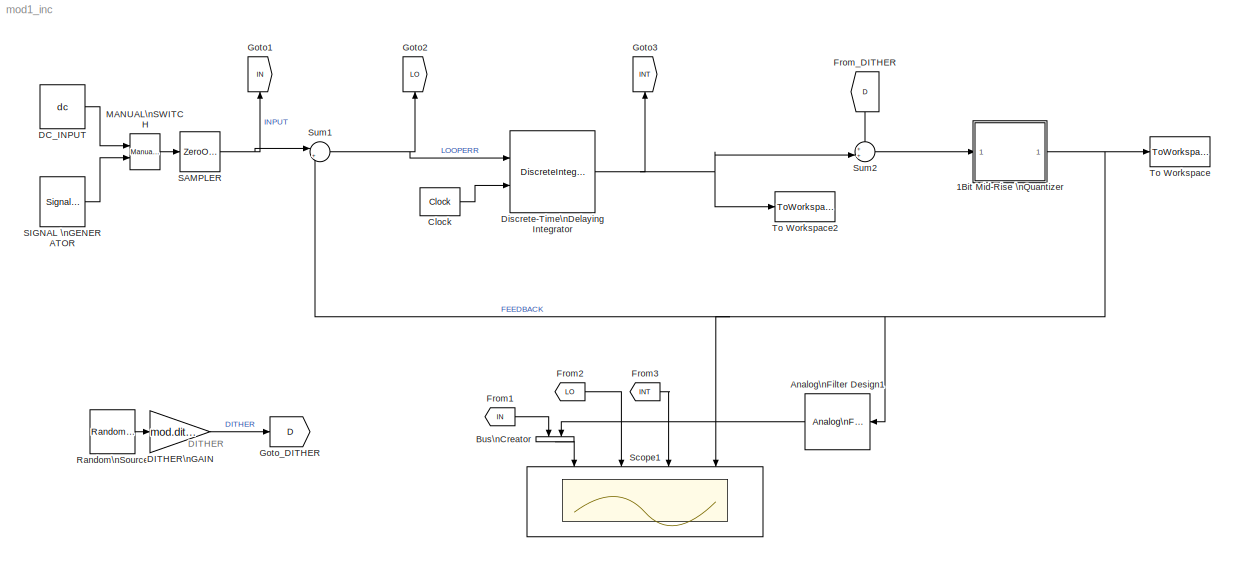
MODEL mod1_inc
KIND model
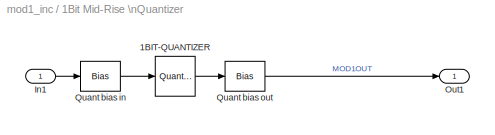
BLOCK [SubSystem] 1Bit Mid-Rise \nQuantizer
  FunctionWithSeparateData = off
  MaskHideContents = off
  MinAlgLoopOccurrences = off
  Opaque = off
  Ports = [1, 1]
  PropExecContextOutsideSubsystem = off
  RTWSystemCode = Auto
  RequestExecContextInheritance = off
  SID = 105
BLOCK [Quantizer] 1Bit Mid-Rise \nQuantizer/1BIT-QUANTIZER
  AttributesFormatString = step = 2
  QuantizationInterval = 2
  SID = 107
  SampleTime = 1/Fs
BLOCK [Inport] 1Bit Mid-Rise \nQuantizer/In1
  IconDisplay = Port number
  SID = 106
BLOCK [Outport] 1Bit Mid-Rise \nQuantizer/Out1
  IconDisplay = Port number
  SID = 111
BLOCK [Bias] 1Bit Mid-Rise \nQuantizer/Quant bias in
  AttributesFormatString = Need offset to give\\nMID-RISE quantiser
  Bias = 1
  SID = 109
  SaturateOnIntegerOverflow = off
BLOCK [Bias] 1Bit Mid-Rise \nQuantizer/Quant bias out
  AttributesFormatString = Shift outputs to\\n..., -2, 1, 1, ...
  Bias = -1
  SID = 110
  SaturateOnIntegerOverflow = off
BLOCK [Reference] Analog\nFilter Design1  REF=dsparch4/Analog\nFilter Design
  N = 8
  Ports = [1, 1]
  Rp = 2
  Rs = 40
  SID = 112
  SourceBlock = dsparch4/Analog\nFilter Design
  SourceType = Analog Filter Design
  Whi = 80
  Wlo = pi*(Fs/OSR)
  filttype = Lowpass
  method = Butterworth
BLOCK [BusCreator] Bus\nCreator
  DisplayOption = bar
  Inputs = 2
  Ports = [2, 1]
  SID = 113
BLOCK [Reference] Clock  REF=simulink_extras/Flip Flops/Clock
  Ports = [0, 1]
  SID = 103
  SourceBlock = simulink_extras/Flip Flops/Clock
  SourceType = Digital clock
  period = 1/(Fs/OSR)
BLOCK [Constant] DC_INPUT
  OutDataTypeStr = double
  SID = 56
  SampleTime = 1/(Fs/OSR)
  Value = dc
BLOCK [Gain] DITHER\nGAIN
  Gain = mod.dither
  OutDataTypeStr = Inherit: Inherit via internal rule
  ParamDataTypeStr = Inherit: Inherit via internal rule
  SID = 29
  SampleTime = 1/Fs
  SaturateOnIntegerOverflow = off
BLOCK [DiscreteIntegrator] Discrete-Time\nDelaying Integrator
  ExternalReset = either
  ICPrevOutput = DiscIntNeverNeededParam
  ICPrevScaledInput = DiscIntNeverNeededParam
  IntegratorMethod = Accumulation: Forward Euler
  LimitOutput = on
  Ports = [2, 1]
  SID = 101
  SampleTime = 1/Fs
BLOCK [From] From1
  GotoTag = IN
  SID = 114
BLOCK [From] From2
  GotoTag = LO
  SID = 115
BLOCK [From] From3
  GotoTag = INT
  SID = 116
BLOCK [From] From_DITHER
  GotoTag = D
  SID = 53
BLOCK [Goto] Goto1
  GotoTag = IN
  SID = 120
BLOCK [Goto] Goto2
  GotoTag = LO
  SID = 121
BLOCK [Goto] Goto3
  GotoTag = INT
  SID = 122
BLOCK [Goto] Goto_DITHER
  GotoTag = D
  SID = 52
BLOCK [Reference] MANUAL\nSWITCH  REF=simulink/Signal\nRouting/Manual Switch
  AttributesFormatString = Double click to\\nselect the desired\\ninput
  Ports = [2, 1]
  SID = 74
  SourceBlock = simulink/Signal\nRouting/Manual Switch
  SourceType = Manual Switch
  action = 0
  sw = 0
  varsize = off
BLOCK [Reference] Random\nSource  REF=dspsrcs4/Random\nSource
  CltLength = 12
  DataType = Double
  IsInherit = off
  MaxVal = 1
  MeanVal = 0
  MinVal = -1
  NormMethod = Ziggurat
  OutComplex = Real
  Ports = [0, 1]
  RepMode = Not repeatable
  SID = 25
  SampFrame = 1
  SampMode = Discrete
  SampTime = 1/Fs
  SourceBlock = dspsrcs4/Random\nSource
  SourceType = Random Source
  SrcType = Uniform
  UserData = DataTag0
  UserDataPersistent = on
  VarVal = 1
  rawSeed = 1
BLOCK [ZeroOrderHold] SAMPLER
  SID = 87
  SampleTime = 1/(Fs/OSR)
BLOCK [SignalGenerator] SIGNAL \nGENERATOR
  Amplitude = sinamp
  Frequency = sinfreq
  Ports = [0, 1]
  SID = 86
BLOCK [Scope] Scope1
  DataFormat = StructureWithTime
  Floating = off
  NumInputPorts = 4
  Ports = [4]
  SID = 117
  SampleTime = 0
  ShowLegends = off
  TimeRange = 2.089895171320487e-05
  YMax = 1.1~1.6~1.6~1.1
  YMin = -1.1~-0.6~-0.6~-1.1
  ZoomMode = yonly
BLOCK [Sum] Sum1
  AttributesFormatString = Modulator Input\\nLoop Error (input - fbk)
  IconShape = round
  InputSameDT = off
  Inputs = |+-
  OutDataTypeStr = Inherit: Inherit via internal rule
  Ports = [2, 1]
  SID = 7
  SampleTime = 1/Fs
  SaturateOnIntegerOverflow = off
BLOCK [Sum] Sum2
  IconShape = round
  InputSameDT = off
  Inputs = ++|
  OutDataTypeStr = Inherit: Inherit via internal rule
  Ports = [2, 1]
  SID = 30
  SampleTime = 1/Fs
  SaturateOnIntegerOverflow = off
BLOCK [ToWorkspace] To Workspace
  AttributesFormatString = Export output to\\nworkspace for\\npost-processing
  MaxDataPoints = inf
  Ports = [1]
  SID = 31
  SampleTime = -1
  VariableName = mod_out
BLOCK [ToWorkspace] To Workspace2
  AttributesFormatString = Export output to\\nworkspace for\\npost-processing
  MaxDataPoints = inf
  Ports = [1]
  SID = 60
  SampleTime = -1
  VariableName = INT1OUT
ANNOTATION (root): DITHER \n\n\n\n\n\n
LINE 1Bit Mid-Rise \nQuantizer/1BIT-QUANTIZER:1 -> 1Bit Mid-Rise \nQuantizer/Quant bias out:1
LINE 1Bit Mid-Rise \nQuantizer/In1:1 -> 1Bit Mid-Rise \nQuantizer/Quant bias in:1
LINE 1Bit Mid-Rise \nQuantizer/Quant bias in:1 -> 1Bit Mid-Rise \nQuantizer/1BIT-QUANTIZER:1
LINE 1Bit Mid-Rise \nQuantizer/Quant bias out:1 -> 1Bit Mid-Rise \nQuantizer/Out1:1
NET 1Bit Mid-Rise \nQuantizer:1 -> Analog\nFilter Design1:1, Scope1:4, Sum1:2, To Workspace:1
LINE Analog\nFilter Design1:1 -> Bus\nCreator:2
LINE Bus\nCreator:1 -> Scope1:1
LINE Clock:1 -> Discrete-Time\nDelaying Integrator:2
LINE DC_INPUT:1 -> MANUAL\nSWITCH:1
LINE DITHER\nGAIN:1 -> Goto_DITHER:1
NET Discrete-Time\nDelaying Integrator:1 -> Goto3:1, Sum2:2, To Workspace2:1
LINE From1:1 -> Bus\nCreator:1
LINE From2:1 -> Scope1:2
LINE From3:1 -> Scope1:3
LINE From_DITHER:1 -> Sum2:1
LINE MANUAL\nSWITCH:1 -> SAMPLER:1
LINE Random\nSource:1 -> DITHER\nGAIN:1
NET SAMPLER:1 -> Goto1:1, Sum1:1
LINE SIGNAL \nGENERATOR:1 -> MANUAL\nSWITCH:2
NET Sum1:1 -> Discrete-Time\nDelaying Integrator:1, Goto2:1
LINE Sum2:1 -> 1Bit Mid-Rise \nQuantizer:1
note: NET lines group one-source signal fan-out (src -> all destinations, sorted); 1:1 wires keep LINE
